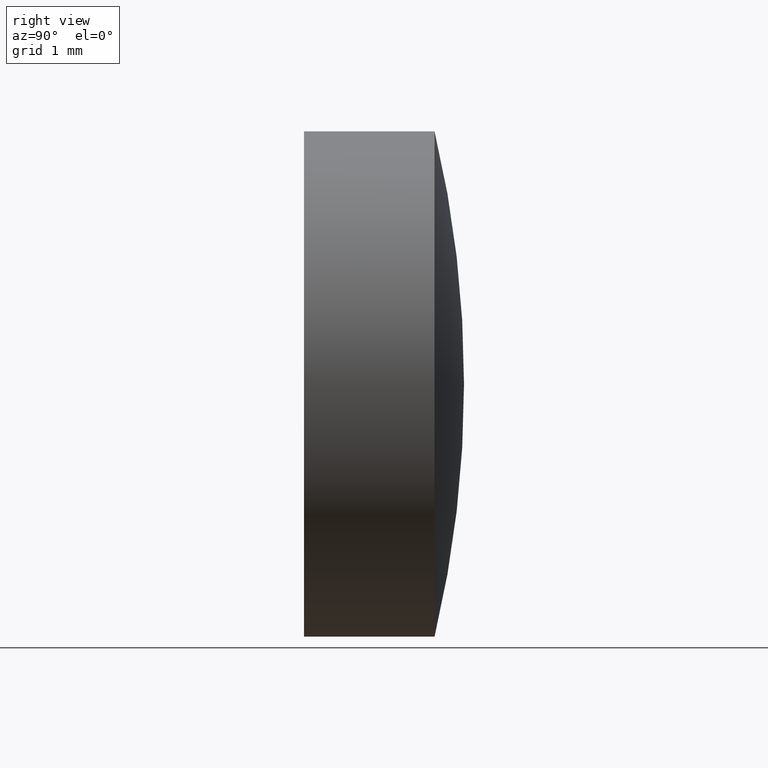
[diagram: clean part render]
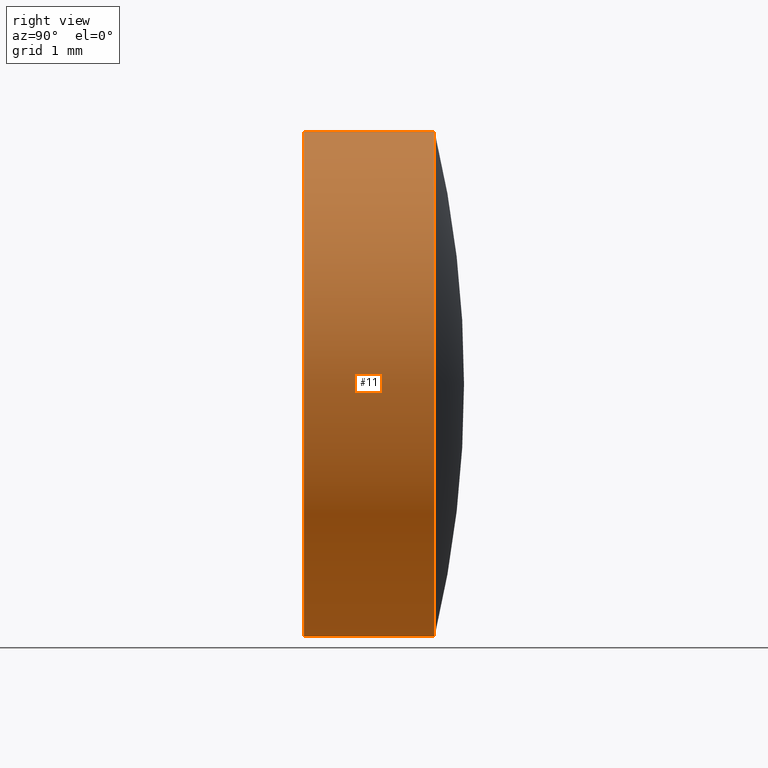
[diagram: same view with one face highlighted and labeled with its STEP entity id]
A machine part, right view. The second image highlights one B-rep face of the part: STEP entity #11.
In plain terms, the highlighted cylindrical surface (partial cylindrical patch) has radius 3 mm, axis along (-0, 1, -0).
Its self-contained STEP definition (entity closure, byte-faithful):
#1 = DIRECTION ( 'NONE',  ( -0.000000000000000000, 1.000000000000000000, -0.000000000000000000 ) ) ;
#11 = ADVANCED_FACE ( 'NONE', ( #17 ), #42, .T. ) ;
#12 = VECTOR ( 'NONE', #157, 1000.000000000000000 ) ;
#14 = VERTEX_POINT ( 'NONE', #156 ) ;
#17 = FACE_OUTER_BOUND ( 'NONE', #29, .T. ) ;
#20 = AXIS2_PLACEMENT_3D ( 'NONE', #112, #1, #173 ) ;
#26 = CARTESIAN_POINT ( 'NONE',  ( 0.000000000000000000, -4.336808689942017736E-16, 0.000000000000000000 ) ) ;
#29 = EDGE_LOOP ( 'NONE', ( #40, #146, #165, #149 ) ) ;
#40 = ORIENTED_EDGE ( 'NONE', *, *, #190, .T. ) ;
#42 = CYLINDRICAL_SURFACE ( 'NONE', #154, 3.000000000000000000 ) ;
#44 = CARTESIAN_POINT ( 'NONE',  ( 3.673940397442059375E-16, 1.549999999999999378, -2.999999999999999112 ) ) ;
#47 = LINE ( 'NONE', #172, #70 ) ;
#48 = CIRCLE ( 'NONE', #150, 3.000000000000000000 ) ;
#49 = CARTESIAN_POINT ( 'NONE',  ( 0.000000000000000000, 1.900000000000000133, 3.000000000000000000 ) ) ;
#55 = EDGE_CURVE ( 'NONE', #140, #134, #168, .T. ) ;
#59 = DIRECTION ( 'NONE',  ( 0.000000000000000000, 0.000000000000000000, 1.000000000000000000 ) ) ;
#70 = VECTOR ( 'NONE', #141, 1000.000000000000000 ) ;
#73 = DIRECTION ( 'NONE',  ( -0.000000000000000000, 1.000000000000000000, -0.000000000000000000 ) ) ;
#95 = DIRECTION ( 'NONE',  ( 0.000000000000000000, 0.000000000000000000, 1.000000000000000000 ) ) ;
#109 = CARTESIAN_POINT ( 'NONE',  ( 0.000000000000000000, 1.549999999999999378, 2.999999999999999112 ) ) ;
#111 = CARTESIAN_POINT ( 'NONE',  ( 0.000000000000000000, -4.336808689942017736E-16, 3.000000000000000000 ) ) ;
#112 = CARTESIAN_POINT ( 'NONE',  ( 0.000000000000000000, 1.549999999999999600, 0.000000000000000000 ) ) ;
#119 = EDGE_CURVE ( 'NONE', #134, #166, #135, .T. ) ;
#134 = VERTEX_POINT ( 'NONE', #109 ) ;
#135 = CIRCLE ( 'NONE', #20, 3.000000000000000000 ) ;
#140 = VERTEX_POINT ( 'NONE', #111 ) ;
#141 = DIRECTION ( 'NONE',  ( -0.000000000000000000, 1.000000000000000000, -0.000000000000000000 ) ) ;
#146 = ORIENTED_EDGE ( 'NONE', *, *, #197, .T. ) ;
#149 = ORIENTED_EDGE ( 'NONE', *, *, #55, .F. ) ;
#150 = AXIS2_PLACEMENT_3D ( 'NONE', #26, #189, #59 ) ;
#154 = AXIS2_PLACEMENT_3D ( 'NONE', #169, #73, #95 ) ;
#156 = CARTESIAN_POINT ( 'NONE',  ( 3.673940397442059868E-16, -4.336808689942017736E-16, -3.000000000000000000 ) ) ;
#157 = DIRECTION ( 'NONE',  ( -0.000000000000000000, 1.000000000000000000, -0.000000000000000000 ) ) ;
#165 = ORIENTED_EDGE ( 'NONE', *, *, #119, .F. ) ;
#166 = VERTEX_POINT ( 'NONE', #44 ) ;
#168 = LINE ( 'NONE', #49, #12 ) ;
#169 = CARTESIAN_POINT ( 'NONE',  ( 0.000000000000000000, 1.900000000000000133, 0.000000000000000000 ) ) ;
#172 = CARTESIAN_POINT ( 'NONE',  ( 3.673940397442059868E-16, 1.900000000000000133, -3.000000000000000000 ) ) ;
#173 = DIRECTION ( 'NONE',  ( 0.000000000000000000, 0.000000000000000000, 1.000000000000000000 ) ) ;
#189 = DIRECTION ( 'NONE',  ( -0.000000000000000000, 1.000000000000000000, -0.000000000000000000 ) ) ;
#190 = EDGE_CURVE ( 'NONE', #140, #14, #48, .T. ) ;
#197 = EDGE_CURVE ( 'NONE', #14, #166, #47, .T. ) ;